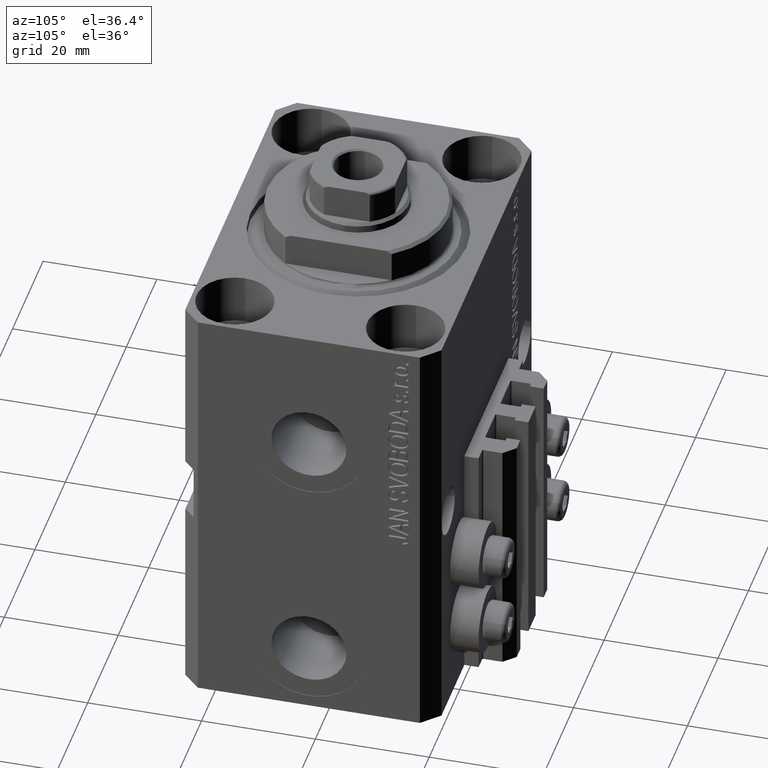
[diagram: clean part render]
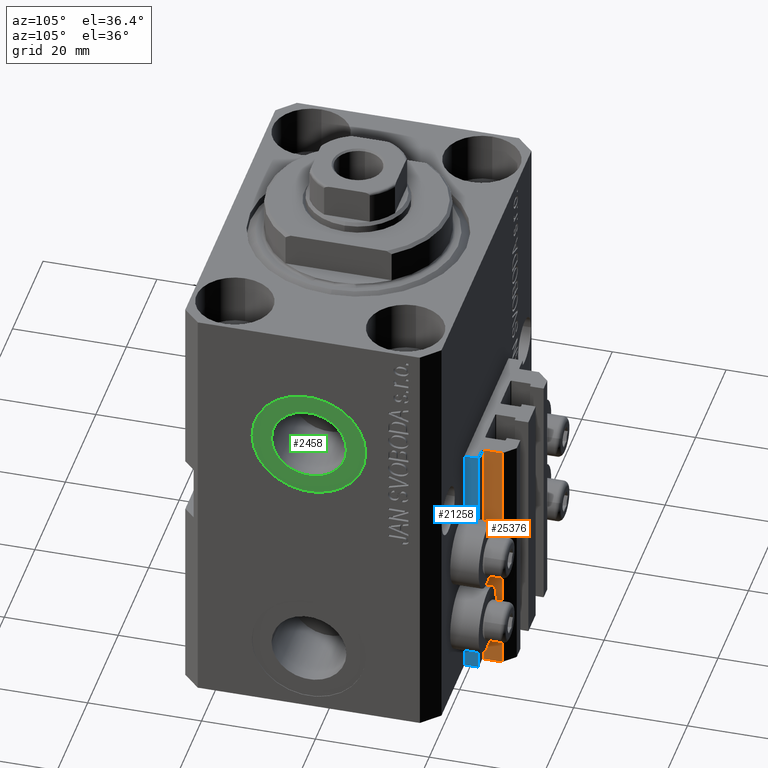
[diagram: same view with three faces highlighted in distinct colors, each labeled with its STEP entity id]
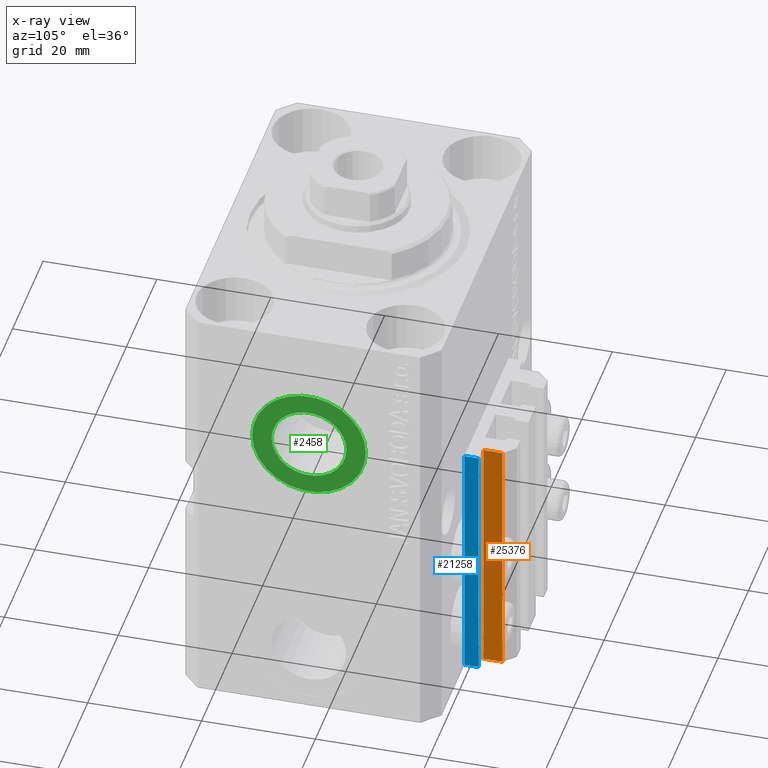
[diagram: x-ray of the same camera — body ghosted, the three highlighted faces saturated]
A machine part, auxiliary view with three faces highlighted in distinct colors.
The next image is the same camera in x-ray (body ghosted, the three faces saturated) — at least one of them is partly hidden behind the body in this view.
Their STEP definitions:

[orange] entity #25376 — the highlighted planar face has unit normal (1, 0, 0).
#2531 = ORIENTED_EDGE ( 'NONE', *, *, #22741, .T. ) ;
#2742 = LINE ( 'NONE', #39189, #20561 ) ;
#2861 = CARTESIAN_POINT ( 'NONE',  ( 12.00000000000000178, 28.49999999999950973, -77.00000000000000000 ) ) ;
#6041 = VERTEX_POINT ( 'NONE', #30511 ) ;
#7748 = EDGE_CURVE ( 'NONE', #16833, #9654, #2742, .T. ) ;
#9654 = VERTEX_POINT ( 'NONE', #15885 ) ;
#10507 = ORIENTED_EDGE ( 'NONE', *, *, #33358, .T. ) ;
#11247 = FACE_OUTER_BOUND ( 'NONE', #22154, .T. ) ;
#15885 = CARTESIAN_POINT ( 'NONE',  ( 12.00000000000000178, 28.49999999999950973, -33.00000000000000000 ) ) ;
#16309 = ORIENTED_EDGE ( 'NONE', *, *, #24350, .F. ) ;
#16833 = VERTEX_POINT ( 'NONE', #46120 ) ;
#17577 = DIRECTION ( 'NONE',  ( 0.000000000000000000, 0.000000000000000000, 1.000000000000000000 ) ) ;
#17827 = DIRECTION ( 'NONE',  ( 0.000000000000000000, 0.000000000000000000, 1.000000000000000000 ) ) ;
#18460 = AXIS2_PLACEMENT_3D ( 'NONE', #37530, #30271, #25948 ) ;
#18510 = LINE ( 'NONE', #32969, #27636 ) ;
#20561 = VECTOR ( 'NONE', #39430, 1000.000000000000000 ) ;
#22154 = EDGE_LOOP ( 'NONE', ( #24164, #16309, #2531, #10507 ) ) ;
#22197 = CARTESIAN_POINT ( 'NONE',  ( 12.00000000000000178, 28.49999999999950973, -77.00000000000000000 ) ) ;
#22741 = EDGE_CURVE ( 'NONE', #6041, #29687, #18510, .T. ) ;
#24164 = ORIENTED_EDGE ( 'NONE', *, *, #7748, .F. ) ;
#24350 = EDGE_CURVE ( 'NONE', #6041, #16833, #36162, .T. ) ;
#25376 = ADVANCED_FACE ( 'NONE', ( #11247 ), #34124, .T. ) ;
#25948 = DIRECTION ( 'NONE',  ( 0.000000000000000000, 0.000000000000000000, -1.000000000000000000 ) ) ;
#27636 = VECTOR ( 'NONE', #40237, 1000.000000000000000 ) ;
#29687 = VERTEX_POINT ( 'NONE', #22197 ) ;
#30271 = DIRECTION ( 'NONE',  ( 1.000000000000000000, 0.000000000000000000, 0.000000000000000000 ) ) ;
#30511 = CARTESIAN_POINT ( 'NONE',  ( 12.00000000000000355, 25.19999999999951257, -77.00000000000000000 ) ) ;
#30735 = VECTOR ( 'NONE', #17827, 1000.000000000000000 ) ;
#32969 = CARTESIAN_POINT ( 'NONE',  ( 12.00000000000000178, 25.19999999999951257, -77.00000000000000000 ) ) ;
#33358 = EDGE_CURVE ( 'NONE', #29687, #9654, #35421, .T. ) ;
#34124 = PLANE ( 'NONE',  #18460 ) ;
#35421 = LINE ( 'NONE', #2861, #47147 ) ;
#36162 = LINE ( 'NONE', #47742, #30735 ) ;
#37530 = CARTESIAN_POINT ( 'NONE',  ( 12.00000000000000178, 25.19999999999951257, -77.00000000000000000 ) ) ;
#39189 = CARTESIAN_POINT ( 'NONE',  ( 12.00000000000000178, 25.19999999999951257, -33.00000000000000000 ) ) ;
#39430 = DIRECTION ( 'NONE',  ( 0.000000000000000000, 1.000000000000000000, 0.000000000000000000 ) ) ;
#40237 = DIRECTION ( 'NONE',  ( 0.000000000000000000, 1.000000000000000000, 0.000000000000000000 ) ) ;
#46120 = CARTESIAN_POINT ( 'NONE',  ( 12.00000000000000355, 25.19999999999951257, -33.00000000000000000 ) ) ;
#47147 = VECTOR ( 'NONE', #17577, 1000.000000000000000 ) ;
#47742 = CARTESIAN_POINT ( 'NONE',  ( 12.00000000000000355, 25.19999999999951257, -77.00000000000000000 ) ) ;

[blue] entity #21258 — the highlighted planar face has unit normal (1, -0, 0).
#1742 = VECTOR ( 'NONE', #46753, 1000.000000000000000 ) ;
#3079 = VERTEX_POINT ( 'NONE', #23020 ) ;
#3661 = DIRECTION ( 'NONE',  ( 1.000000000000000000, -6.938893903907212600E-16, 0.000000000000000000 ) ) ;
#6000 = EDGE_CURVE ( 'NONE', #37002, #3079, #39504, .T. ) ;
#6682 = VECTOR ( 'NONE', #18250, 1000.000000000000000 ) ;
#9363 = CARTESIAN_POINT ( 'NONE',  ( 14.49999999999999645, 22.49999999999949907, -77.00000000000000000 ) ) ;
#10377 = DIRECTION ( 'NONE',  ( 6.938893903907212600E-16, 1.000000000000000000, 0.000000000000000000 ) ) ;
#13727 = ORIENTED_EDGE ( 'NONE', *, *, #6000, .F. ) ;
#14208 = DIRECTION ( 'NONE',  ( 0.000000000000000000, 0.000000000000000000, 1.000000000000000000 ) ) ;
#16808 = AXIS2_PLACEMENT_3D ( 'NONE', #44444, #3661, #25126 ) ;
#17913 = CARTESIAN_POINT ( 'NONE',  ( 14.49999999999999822, 24.99999999999950617, -77.00000000000000000 ) ) ;
#18132 = FACE_OUTER_BOUND ( 'NONE', #44794, .T. ) ;
#18250 = DIRECTION ( 'NONE',  ( 0.000000000000000000, 0.000000000000000000, 1.000000000000000000 ) ) ;
#19996 = VECTOR ( 'NONE', #14208, 1000.000000000000000 ) ;
#21258 = ADVANCED_FACE ( 'NONE', ( #18132 ), #36231, .T. ) ;
#22334 = EDGE_CURVE ( 'NONE', #3079, #42724, #32786, .T. ) ;
#23020 = CARTESIAN_POINT ( 'NONE',  ( 14.49999999999999645, 22.49999999999949907, -33.00000000000000000 ) ) ;
#23405 = ORIENTED_EDGE ( 'NONE', *, *, #25096, .T. ) ;
#24406 = LINE ( 'NONE', #33008, #19996 ) ;
#24495 = CARTESIAN_POINT ( 'NONE',  ( 14.49999999999999645, 22.49999999999949907, -77.00000000000000000 ) ) ;
#24544 = LINE ( 'NONE', #9363, #1742 ) ;
#25096 = EDGE_CURVE ( 'NONE', #39672, #42724, #24406, .T. ) ;
#25126 = DIRECTION ( 'NONE',  ( 6.938893903907212600E-16, 1.000000000000000000, 0.000000000000000000 ) ) ;
#32786 = LINE ( 'NONE', #43435, #35318 ) ;
#33008 = CARTESIAN_POINT ( 'NONE',  ( 14.49999999999999822, 24.99999999999950617, -77.00000000000000000 ) ) ;
#35318 = VECTOR ( 'NONE', #10377, 1000.000000000000000 ) ;
#35992 = EDGE_CURVE ( 'NONE', #37002, #39672, #24544, .T. ) ;
#36231 = PLANE ( 'NONE',  #16808 ) ;
#36345 = CARTESIAN_POINT ( 'NONE',  ( 14.49999999999999645, 22.49999999999949907, -77.00000000000000000 ) ) ;
#37002 = VERTEX_POINT ( 'NONE', #24495 ) ;
#37166 = ORIENTED_EDGE ( 'NONE', *, *, #22334, .F. ) ;
#39221 = ORIENTED_EDGE ( 'NONE', *, *, #35992, .T. ) ;
#39504 = LINE ( 'NONE', #36345, #6682 ) ;
#39672 = VERTEX_POINT ( 'NONE', #17913 ) ;
#42724 = VERTEX_POINT ( 'NONE', #42842 ) ;
#42842 = CARTESIAN_POINT ( 'NONE',  ( 14.49999999999999822, 24.99999999999950617, -33.00000000000000000 ) ) ;
#43435 = CARTESIAN_POINT ( 'NONE',  ( 14.49999999999999645, 22.49999999999949907, -33.00000000000000000 ) ) ;
#44444 = CARTESIAN_POINT ( 'NONE',  ( 14.49999999999999645, 22.49999999999949907, -77.00000000000000000 ) ) ;
#44794 = EDGE_LOOP ( 'NONE', ( #37166, #13727, #39221, #23405 ) ) ;
#46753 = DIRECTION ( 'NONE',  ( 6.938893903907212600E-16, 1.000000000000000000, 0.000000000000000000 ) ) ;

[green] entity #2458 — the highlighted planar face has unit normal (1, -0, 0).
#2458 = ADVANCED_FACE ( 'NONE', ( #40599, #40355 ), #14300, .T. ) ;
#2786 = CIRCLE ( 'NONE', #25121, 6.580000000000002736 ) ;
#2790 = EDGE_LOOP ( 'NONE', ( #30457, #16230 ) ) ;
#3307 = CARTESIAN_POINT ( 'NONE',  ( 32.39999999999686509, 6.579999999999570193, -22.00000000000000000 ) ) ;
#3923 = DIRECTION ( 'NONE',  ( 1.334402673828349134E-14, 1.000000000000000000, 0.000000000000000000 ) ) ;
#4664 = ORIENTED_EDGE ( 'NONE', *, *, #6382, .F. ) ;
#5151 = ORIENTED_EDGE ( 'NONE', *, *, #41289, .F. ) ;
#6382 = EDGE_CURVE ( 'NONE', #45572, #20871, #29039, .T. ) ;
#8740 = DIRECTION ( 'NONE',  ( 1.370906090437597808E-14, 1.000000000000000000, 0.000000000000000000 ) ) ;
#9708 = AXIS2_PLACEMENT_3D ( 'NONE', #33936, #16098, #27402 ) ;
#10453 = DIRECTION ( 'NONE',  ( 1.000000000000000000, -1.334402673828349134E-14, 0.000000000000000000 ) ) ;
#10550 = AXIS2_PLACEMENT_3D ( 'NONE', #45219, #19152, #44980 ) ;
#13484 = AXIS2_PLACEMENT_3D ( 'NONE', #18159, #10453, #3923 ) ;
#14300 = PLANE ( 'NONE',  #13484 ) ;
#14821 = DIRECTION ( 'NONE',  ( 1.370906090437597808E-14, 1.000000000000000000, 0.000000000000000000 ) ) ;
#15977 = DIRECTION ( 'NONE',  ( 1.000000000000000000, -1.334402673828349134E-14, 0.000000000000000000 ) ) ;
#16098 = DIRECTION ( 'NONE',  ( 1.000000000000000000, -1.334402673828349134E-14, 0.000000000000000000 ) ) ;
#16230 = ORIENTED_EDGE ( 'NONE', *, *, #18638, .T. ) ;
#18159 = CARTESIAN_POINT ( 'NONE',  ( 32.39999999999677271, -4.323464663203420381E-13, -22.00000000000000000 ) ) ;
#18638 = EDGE_CURVE ( 'NONE', #20365, #42285, #32102, .T. ) ;
#19135 = DIRECTION ( 'NONE',  ( 1.000000000000000000, -1.334402673828349134E-14, 0.000000000000000000 ) ) ;
#19152 = DIRECTION ( 'NONE',  ( 1.000000000000000000, -1.334402673828349134E-14, 0.000000000000000000 ) ) ;
#20308 = CARTESIAN_POINT ( 'NONE',  ( 32.39999999999690061, 9.999999999999568345, -22.00000000000000000 ) ) ;
#20365 = VERTEX_POINT ( 'NONE', #44770 ) ;
#20871 = VERTEX_POINT ( 'NONE', #43787 ) ;
#24148 = CARTESIAN_POINT ( 'NONE',  ( 32.39999999999677271, -4.323464663203420381E-13, -22.00000000000000000 ) ) ;
#25121 = AXIS2_PLACEMENT_3D ( 'NONE', #24148, #15977, #8740 ) ;
#27402 = DIRECTION ( 'NONE',  ( 1.318389841742373392E-14, 1.000000000000000000, 0.000000000000000000 ) ) ;
#29039 = CIRCLE ( 'NONE', #30548, 6.580000000000002736 ) ;
#29991 = CARTESIAN_POINT ( 'NONE',  ( 32.39999999999677271, -4.323464663203420381E-13, -22.00000000000000000 ) ) ;
#30457 = ORIENTED_EDGE ( 'NONE', *, *, #40915, .T. ) ;
#30548 = AXIS2_PLACEMENT_3D ( 'NONE', #29991, #19135, #14821 ) ;
#30919 = EDGE_LOOP ( 'NONE', ( #4664, #5151 ) ) ;
#32102 = CIRCLE ( 'NONE', #10550, 10.00000000000000000 ) ;
#33936 = CARTESIAN_POINT ( 'NONE',  ( 32.39999999999677271, -4.323464663203420381E-13, -22.00000000000000000 ) ) ;
#40355 = FACE_OUTER_BOUND ( 'NONE', #2790, .T. ) ;
#40599 = FACE_BOUND ( 'NONE', #30919, .T. ) ;
#40915 = EDGE_CURVE ( 'NONE', #42285, #20365, #42847, .T. ) ;
#41289 = EDGE_CURVE ( 'NONE', #20871, #45572, #2786, .T. ) ;
#42285 = VERTEX_POINT ( 'NONE', #20308 ) ;
#42847 = CIRCLE ( 'NONE', #9708, 10.00000000000000000 ) ;
#43787 = CARTESIAN_POINT ( 'NONE',  ( 32.39999999999668034, -6.580000000000433502, -22.00000000000000000 ) ) ;
#44770 = CARTESIAN_POINT ( 'NONE',  ( 32.39999999999663771, -10.00000000000043165, -22.00000000000000000 ) ) ;
#44980 = DIRECTION ( 'NONE',  ( 1.318389841742373392E-14, 1.000000000000000000, 0.000000000000000000 ) ) ;
#45219 = CARTESIAN_POINT ( 'NONE',  ( 32.39999999999677271, -4.323464663203420381E-13, -22.00000000000000000 ) ) ;
#45572 = VERTEX_POINT ( 'NONE', #3307 ) ;